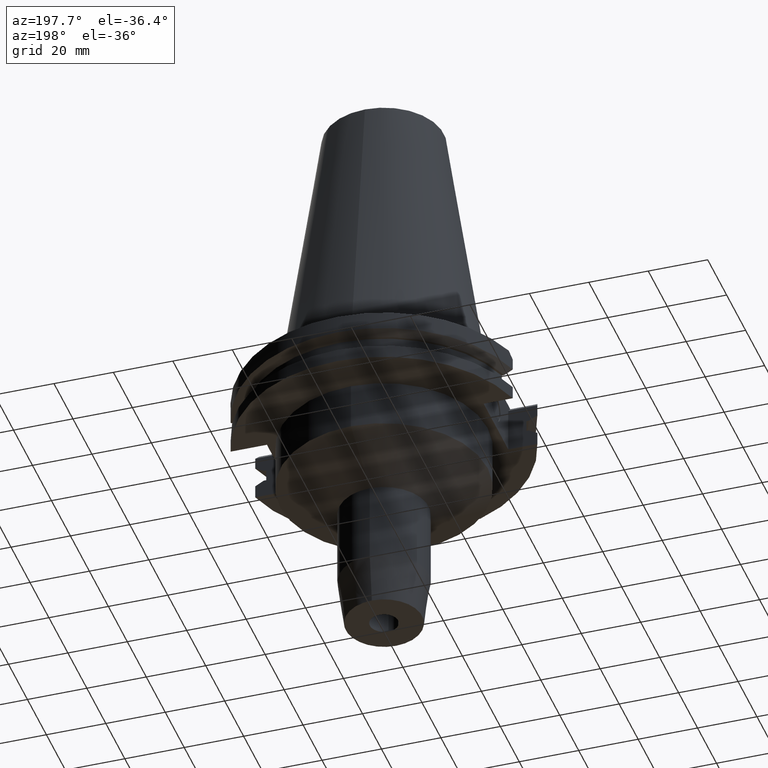
[diagram: clean part render]
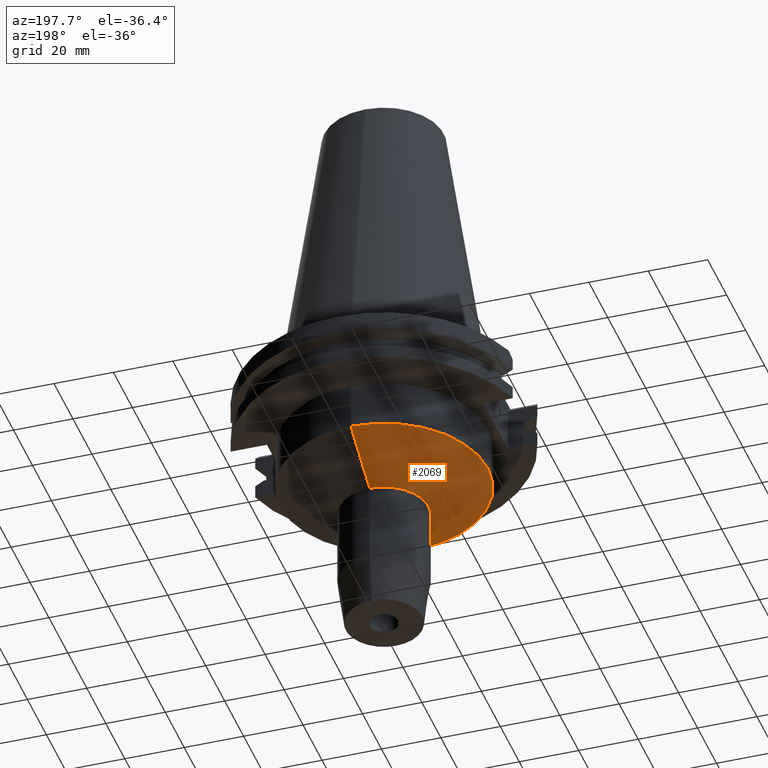
[diagram: same view with one face highlighted and labeled with its STEP entity id]
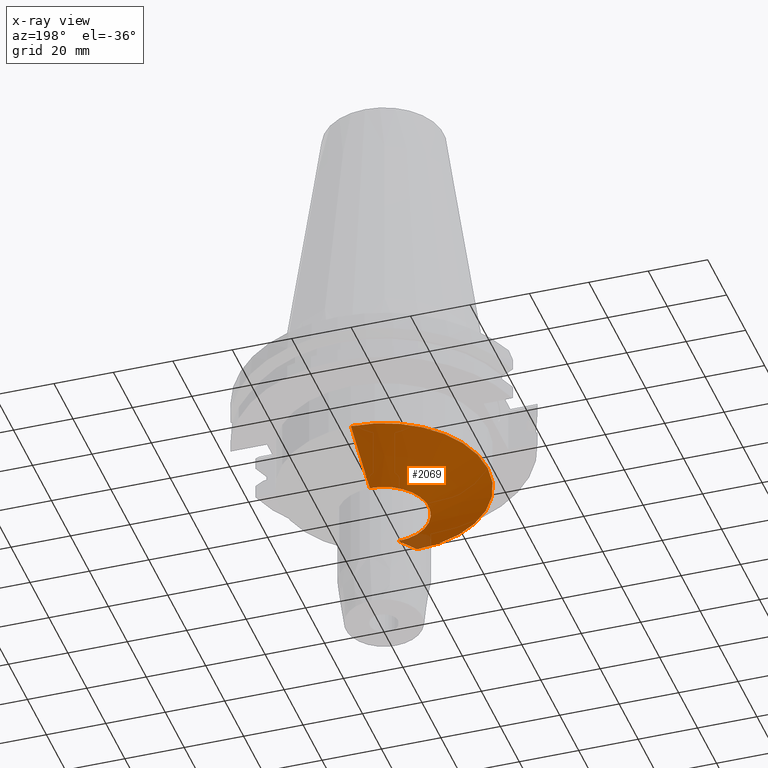
[diagram: x-ray of the same camera — body ghosted, the highlighted face saturated]
A machine part, auxiliary view. The second image highlights one B-rep face of the part: STEP entity #2069.
The next image is the same camera in x-ray: the body ghosted, the highlighted face saturated — about 3% of this face is hidden behind the body in this view.
In plain terms, the highlighted conical surface has half-angle 61.73 deg.
Its self-contained STEP definition (entity closure, byte-faithful):
#862=DIRECTION('',(0.E0,-8.807254648097E-1,-4.736271272169E-1));
#863=VECTOR('',#862,2.262339491263E1);
#864=CARTESIAN_POINT('',(0.E0,3.4925E1,-3.5E1));
#865=LINE('',#864,#863);
#885=CARTESIAN_POINT('',(0.E0,0.E0,-3.5E1));
#886=DIRECTION('',(0.E0,0.E0,1.E0));
#887=DIRECTION('',(0.E0,1.E0,0.E0));
#888=AXIS2_PLACEMENT_3D('',#885,#886,#887);
#893=DIRECTION('',(0.E0,8.807254648097E-1,-4.736271272169E-1));
#894=VECTOR('',#893,2.262339491263E1);
#895=CARTESIAN_POINT('',(0.E0,-3.4925E1,-3.5E1));
#896=LINE('',#895,#894);
#900=CARTESIAN_POINT('',(0.E0,0.E0,-4.571505354036E1));
#901=DIRECTION('',(0.E0,0.E0,-1.E0));
#902=DIRECTION('',(0.E0,-1.E0,0.E0));
#903=AXIS2_PLACEMENT_3D('',#900,#901,#902);
#1268=CARTESIAN_POINT('',(0.E0,1.5E1,-4.571505354036E1));
#1269=VERTEX_POINT('',#1268);
#1270=CARTESIAN_POINT('',(0.E0,-1.5E1,-4.571505354036E1));
#1271=VERTEX_POINT('',#1270);
#1272=CARTESIAN_POINT('',(0.E0,3.4925E1,-3.5E1));
#1273=VERTEX_POINT('',#1272);
#1274=CARTESIAN_POINT('',(0.E0,-3.4925E1,-3.5E1));
#1275=VERTEX_POINT('',#1274);
#2057=CARTESIAN_POINT('',(0.E0,0.E0,-4.035752677018E1));
#2058=DIRECTION('',(0.E0,0.E0,1.E0));
#2059=DIRECTION('',(0.E0,1.E0,0.E0));
#2060=AXIS2_PLACEMENT_3D('',#2057,#2058,#2059);
#2061=CONICAL_SURFACE('',#2060,2.49625E1,6.173E1);
#2062=ORIENTED_EDGE('',*,*,#2047,.F.);
#2063=ORIENTED_EDGE('',*,*,#2024,.T.);
#2064=ORIENTED_EDGE('',*,*,#2051,.T.);
#2066=ORIENTED_EDGE('',*,*,#2065,.T.);
#2067=EDGE_LOOP('',(#2062,#2063,#2064,#2066));
#2068=FACE_OUTER_BOUND('',#2067,.F.);
#889=CIRCLE('',#888,3.4925E1);
#904=CIRCLE('',#903,1.5E1);
#2024=EDGE_CURVE('',#1273,#1275,#889,.T.);
#2047=EDGE_CURVE('',#1273,#1269,#865,.T.);
#2051=EDGE_CURVE('',#1275,#1271,#896,.T.);
#2065=EDGE_CURVE('',#1271,#1269,#904,.T.);
#2069=ADVANCED_FACE('',(#2068),#2061,.T.);